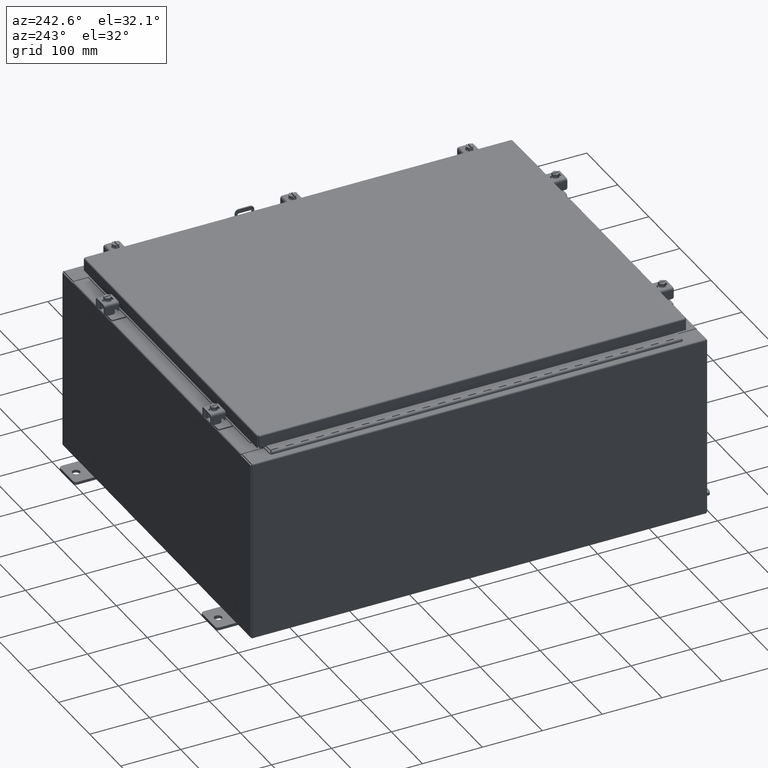
[diagram: clean part render]
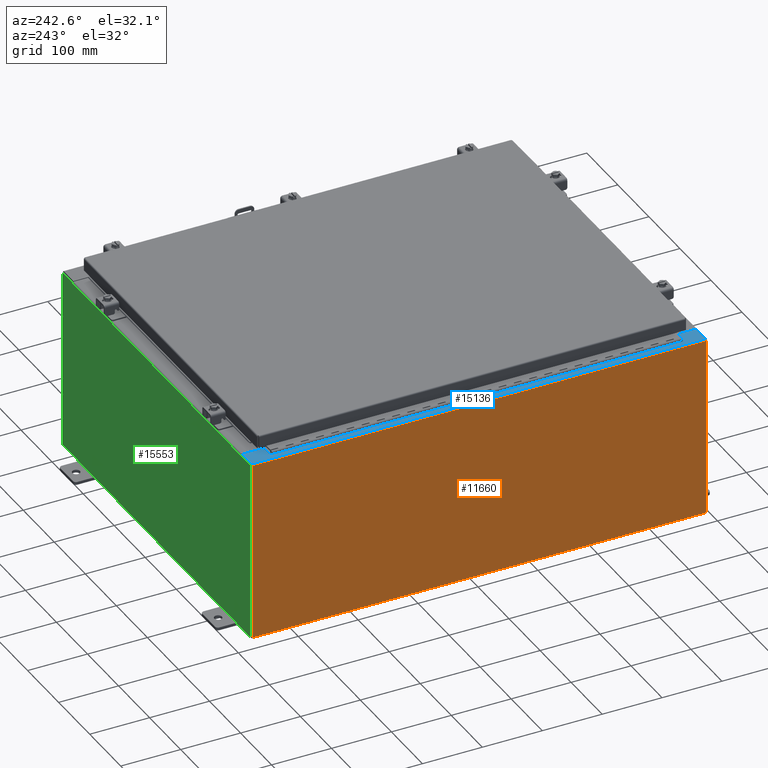
[diagram: same view with three faces highlighted in distinct colors, each labeled with its STEP entity id]
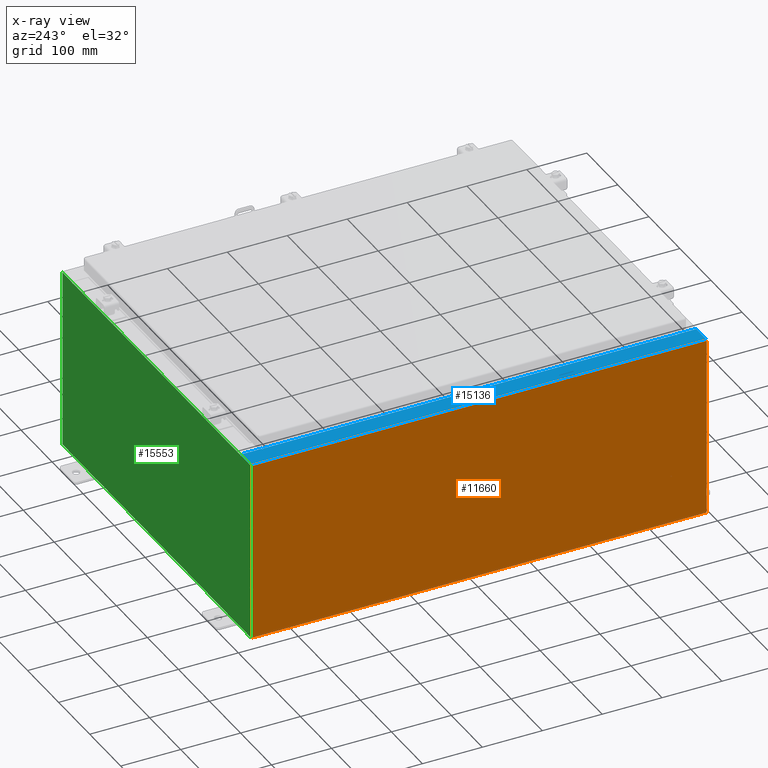
[diagram: x-ray of the same camera — body ghosted, the three highlighted faces saturated]
A machine part, auxiliary view with three faces highlighted in distinct colors.
The next image is the same camera in x-ray (body ghosted, the three faces saturated) — at least one of them is partly hidden behind the body in this view.
Their STEP definitions:

[orange] entity #11660 — the highlighted planar face has unit normal (1, 0, 0).
#926 = VERTEX_POINT ( 'NONE', #29428 ) ;
#4837 = ORIENTED_EDGE ( 'NONE', *, *, #23913, .T. ) ;
#5640 = VECTOR ( 'NONE', #7843, 39.37007874015748100 ) ;
#6124 = EDGE_CURVE ( 'NONE', #7526, #8006, #24874, .T. ) ;
#7376 = VECTOR ( 'NONE', #17183, 39.37007874015748100 ) ;
#7526 = VERTEX_POINT ( 'NONE', #22644 ) ;
#7843 = DIRECTION ( 'NONE',  ( 0.0000000000000000000, 1.000000000000000000, 0.0000000000000000000 ) ) ;
#8006 = VERTEX_POINT ( 'NONE', #34443 ) ;
#8051 = EDGE_CURVE ( 'NONE', #28421, #926, #8302, .T. ) ;
#8302 = LINE ( 'NONE', #22894, #7376 ) ;
#8857 = AXIS2_PLACEMENT_3D ( 'NONE', #14796, #14915, #35388 ) ;
#9064 = EDGE_LOOP ( 'NONE', ( #4837, #10479, #36752, #9737 ) ) ;
#9737 = ORIENTED_EDGE ( 'NONE', *, *, #8051, .T. ) ;
#9794 = VECTOR ( 'NONE', #35792, 39.37007874015748100 ) ;
#10479 = ORIENTED_EDGE ( 'NONE', *, *, #6124, .T. ) ;
#11660 = ADVANCED_FACE ( 'NONE', ( #28235 ), #26511, .F. ) ;
#14796 = CARTESIAN_POINT ( 'NONE',  ( -12.00000000000000500, 0.0000000000000000000, -4.205338505246925100E-014 ) ) ;
#14915 = DIRECTION ( 'NONE',  ( 1.000000000000000000, 0.0000000000000000000, 3.482016343714355100E-015 ) ) ;
#15142 = DIRECTION ( 'NONE',  ( 3.482016343714355500E-015, 0.0000000000000000000, -1.000000000000000000 ) ) ;
#17146 = VECTOR ( 'NONE', #15142, 39.37007874015748100 ) ;
#17183 = DIRECTION ( 'NONE',  ( -3.482016343714355500E-015, 0.0000000000000000000, 1.000000000000000000 ) ) ;
#18451 = LINE ( 'NONE', #21181, #9794 ) ;
#21181 = CARTESIAN_POINT ( 'NONE',  ( -12.00000000000000500, 14.92530000000000000, 0.01299999999999985200 ) ) ;
#22644 = CARTESIAN_POINT ( 'NONE',  ( -12.00000000000004600, 14.92530000000000000, 11.83760000000000000 ) ) ;
#22894 = CARTESIAN_POINT ( 'NONE',  ( -12.00000000000000500, -14.92530000000000000, -4.205338505246925100E-014 ) ) ;
#23913 = EDGE_CURVE ( 'NONE', #926, #7526, #28007, .T. ) ;
#24874 = LINE ( 'NONE', #32669, #17146 ) ;
#26511 = PLANE ( 'NONE',  #8857 ) ;
#28007 = LINE ( 'NONE', #37112, #5640 ) ;
#28235 = FACE_OUTER_BOUND ( 'NONE', #9064, .T. ) ;
#28421 = VERTEX_POINT ( 'NONE', #30241 ) ;
#29428 = CARTESIAN_POINT ( 'NONE',  ( -12.00000000000004600, -14.92530000000000000, 11.83760000000000000 ) ) ;
#30241 = CARTESIAN_POINT ( 'NONE',  ( -12.00000000000000500, -14.92530000000000000, 0.01299999999999985200 ) ) ;
#31495 = EDGE_CURVE ( 'NONE', #28421, #8006, #18451, .T. ) ;
#32669 = CARTESIAN_POINT ( 'NONE',  ( -12.00000000000000500, 14.92530000000000000, -4.205338505246925100E-014 ) ) ;
#34443 = CARTESIAN_POINT ( 'NONE',  ( -12.00000000000000500, 14.92530000000000000, 0.01299999999999985200 ) ) ;
#35388 = DIRECTION ( 'NONE',  ( 3.482016343714355100E-015, 0.0000000000000000000, -1.000000000000000000 ) ) ;
#35792 = DIRECTION ( 'NONE',  ( -0.0000000000000000000, 1.000000000000000000, -0.0000000000000000000 ) ) ;
#36752 = ORIENTED_EDGE ( 'NONE', *, *, #31495, .F. ) ;
#37112 = CARTESIAN_POINT ( 'NONE',  ( -12.00000000000004600, -14.92530000000000000, 11.83760000000000000 ) ) ;

[blue] entity #15136 — the highlighted planar face has unit normal (0, 0, -1).
#312 = VECTOR ( 'NONE', #35569, 39.37007874015748100 ) ;
#434 = EDGE_CURVE ( 'NONE', #12167, #7465, #24797, .T. ) ;
#855 = CARTESIAN_POINT ( 'NONE',  ( -10.75005000000005000, -13.61242500000000000, 11.92530000000000900 ) ) ;
#941 = EDGE_CURVE ( 'NONE', #12470, #20681, #24761, .T. ) ;
#983 = CIRCLE ( 'NONE', #29721, 0.01867499999999949400 ) ;
#1065 = DIRECTION ( 'NONE',  ( -7.132762385546384700E-015, -0.0000000000000000000, 1.000000000000000000 ) ) ;
#1448 = CARTESIAN_POINT ( 'NONE',  ( -10.75005000000005000, -13.63109999999999800, 11.92530000000000900 ) ) ;
#1579 = DIRECTION ( 'NONE',  ( 0.0000000000000000000, 1.000000000000000000, 0.0000000000000000000 ) ) ;
#1714 = ORIENTED_EDGE ( 'NONE', *, *, #4654, .F. ) ;
#2175 = EDGE_CURVE ( 'NONE', #12470, #25241, #33559, .T. ) ;
#2401 = CARTESIAN_POINT ( 'NONE',  ( -10.69970000000004800, -13.63110000000000200, 11.92530000000000900 ) ) ;
#2455 = FACE_OUTER_BOUND ( 'NONE', #11373, .T. ) ;
#2560 = EDGE_CURVE ( 'NONE', #26573, #23428, #983, .T. ) ;
#3809 = DIRECTION ( 'NONE',  ( 1.000000000000000000, 0.0000000000000000000, 0.0000000000000000000 ) ) ;
#4182 = AXIS2_PLACEMENT_3D ( 'NONE', #24514, #27578, #10117 ) ;
#4654 = EDGE_CURVE ( 'NONE', #19203, #26573, #4987, .T. ) ;
#4987 = LINE ( 'NONE', #33914, #10988 ) ;
#5245 = VECTOR ( 'NONE', #27798, 39.37007874015748100 ) ;
#5347 = ORIENTED_EDGE ( 'NONE', *, *, #2175, .F. ) ;
#5784 = DIRECTION ( 'NONE',  ( 0.0000000000000000000, 1.000000000000000000, 0.0000000000000000000 ) ) ;
#6763 = ORIENTED_EDGE ( 'NONE', *, *, #941, .T. ) ;
#7154 = PLANE ( 'NONE',  #4182 ) ;
#7270 = CARTESIAN_POINT ( 'NONE',  ( -10.75005000000005000, -13.63109999999999800, 11.92530000000000900 ) ) ;
#7465 = VERTEX_POINT ( 'NONE', #19610 ) ;
#7641 = DIRECTION ( 'NONE',  ( -1.000000000000000000, 0.0000000000000000000, -7.132762385546384700E-015 ) ) ;
#7823 = CIRCLE ( 'NONE', #16342, 0.01867499999999949400 ) ;
#7995 = EDGE_CURVE ( 'NONE', #23428, #10548, #25650, .T. ) ;
#8347 = EDGE_CURVE ( 'NONE', #7465, #31675, #7823, .T. ) ;
#8691 = ORIENTED_EDGE ( 'NONE', *, *, #2560, .F. ) ;
#9306 = VECTOR ( 'NONE', #32753, 39.37007874015748100 ) ;
#10117 = DIRECTION ( 'NONE',  ( -1.000000000000000000, 0.0000000000000000000, -7.132762385546384700E-015 ) ) ;
#10179 = VECTOR ( 'NONE', #12100, 39.37007874015748100 ) ;
#10548 = VERTEX_POINT ( 'NONE', #20836 ) ;
#10988 = VECTOR ( 'NONE', #19195, 39.37007874015748100 ) ;
#11139 = VERTEX_POINT ( 'NONE', #11909 ) ;
#11373 = EDGE_LOOP ( 'NONE', ( #1714, #24672, #32856, #5347, #6763, #28799, #24395, #19421, #34630, #30504, #30838, #8691 ) ) ;
#11514 = CARTESIAN_POINT ( 'NONE',  ( -10.75005000000005000, 13.63109999999999600, 11.92530000000000900 ) ) ;
#11909 = CARTESIAN_POINT ( 'NONE',  ( -10.69970000000004800, 14.92530000000000000, 11.92530000000000900 ) ) ;
#12066 = EDGE_CURVE ( 'NONE', #11139, #25241, #22279, .T. ) ;
#12100 = DIRECTION ( 'NONE',  ( 1.000000000000000000, -0.0000000000000000000, 7.132762385546384700E-015 ) ) ;
#12167 = VERTEX_POINT ( 'NONE', #28422 ) ;
#12470 = VERTEX_POINT ( 'NONE', #35614 ) ;
#12709 = CARTESIAN_POINT ( 'NONE',  ( -10.69970000000004800, 13.63109999999999800, 11.92530000000000900 ) ) ;
#13015 = EDGE_CURVE ( 'NONE', #10548, #12167, #30536, .T. ) ;
#14760 = VERTEX_POINT ( 'NONE', #2401 ) ;
#15109 = CARTESIAN_POINT ( 'NONE',  ( -10.71270000000005000, 13.59375000000000000, 11.92530000000000900 ) ) ;
#15136 = ADVANCED_FACE ( 'NONE', ( #2455 ), #7154, .F. ) ;
#15213 = EDGE_CURVE ( 'NONE', #19203, #11139, #15302, .T. ) ;
#15302 = LINE ( 'NONE', #22082, #28993 ) ;
#16342 = AXIS2_PLACEMENT_3D ( 'NONE', #855, #21339, #3809 ) ;
#16477 = CARTESIAN_POINT ( 'NONE',  ( -11.91230000000004600, 14.92530000000000000, 11.92530000000000000 ) ) ;
#16910 = CARTESIAN_POINT ( 'NONE',  ( -10.75005000000005000, 13.59374999999999800, 11.92530000000000900 ) ) ;
#18616 = CARTESIAN_POINT ( 'NONE',  ( -10.75005000000005000, 13.61242499999999600, 11.92530000000000900 ) ) ;
#18808 = VECTOR ( 'NONE', #37372, 39.37007874015748100 ) ;
#19195 = DIRECTION ( 'NONE',  ( -1.000000000000000000, -4.340572780399910900E-014, 0.0000000000000000000 ) ) ;
#19203 = VERTEX_POINT ( 'NONE', #12709 ) ;
#19421 = ORIENTED_EDGE ( 'NONE', *, *, #8347, .F. ) ;
#19610 = CARTESIAN_POINT ( 'NONE',  ( -10.75005000000005000, -13.59375000000000000, 11.92530000000000900 ) ) ;
#20681 = VERTEX_POINT ( 'NONE', #22546 ) ;
#20836 = CARTESIAN_POINT ( 'NONE',  ( -10.71270000000005000, 13.59374999999999800, 11.92530000000000900 ) ) ;
#21339 = DIRECTION ( 'NONE',  ( -7.132762385546384700E-015, -0.0000000000000000000, 1.000000000000000000 ) ) ;
#21550 = DIRECTION ( 'NONE',  ( 1.000000000000000000, 0.0000000000000000000, 0.0000000000000000000 ) ) ;
#22082 = CARTESIAN_POINT ( 'NONE',  ( -10.69970000000004800, 0.0000000000000000000, 11.92530000000000900 ) ) ;
#22279 = LINE ( 'NONE', #28035, #30052 ) ;
#22546 = CARTESIAN_POINT ( 'NONE',  ( -10.69970000000004800, -14.92530000000000000, 11.92530000000000900 ) ) ;
#22806 = CARTESIAN_POINT ( 'NONE',  ( -10.75005000000005000, 13.59374999999999800, 11.92530000000000900 ) ) ;
#23428 = VERTEX_POINT ( 'NONE', #22806 ) ;
#24395 = ORIENTED_EDGE ( 'NONE', *, *, #37740, .F. ) ;
#24514 = CARTESIAN_POINT ( 'NONE',  ( -8.532114493224043100E-014, 0.0000000000000000000, 11.92530000000008500 ) ) ;
#24672 = ORIENTED_EDGE ( 'NONE', *, *, #15213, .T. ) ;
#24761 = LINE ( 'NONE', #26594, #10179 ) ;
#24797 = LINE ( 'NONE', #32620, #9306 ) ;
#25241 = VERTEX_POINT ( 'NONE', #34454 ) ;
#25650 = LINE ( 'NONE', #16910, #18808 ) ;
#26573 = VERTEX_POINT ( 'NONE', #11514 ) ;
#26594 = CARTESIAN_POINT ( 'NONE',  ( -8.532114493224043100E-014, -14.92530000000000000, 11.92530000000008500 ) ) ;
#27573 = VECTOR ( 'NONE', #36944, 39.37007874015748100 ) ;
#27578 = DIRECTION ( 'NONE',  ( 7.132762385546384700E-015, 0.0000000000000000000, -1.000000000000000000 ) ) ;
#27798 = DIRECTION ( 'NONE',  ( 1.000000000000000000, 0.0000000000000000000, 0.0000000000000000000 ) ) ;
#28035 = CARTESIAN_POINT ( 'NONE',  ( -8.532114493224043100E-014, 14.92530000000000000, 11.92530000000008500 ) ) ;
#28422 = CARTESIAN_POINT ( 'NONE',  ( -10.71270000000005000, -13.59375000000000000, 11.92530000000000900 ) ) ;
#28574 = LINE ( 'NONE', #1448, #5245 ) ;
#28799 = ORIENTED_EDGE ( 'NONE', *, *, #31119, .T. ) ;
#28993 = VECTOR ( 'NONE', #1579, 39.37007874015748100 ) ;
#29453 = VECTOR ( 'NONE', #5784, 39.37007874015748100 ) ;
#29721 = AXIS2_PLACEMENT_3D ( 'NONE', #18616, #1065, #21550 ) ;
#30052 = VECTOR ( 'NONE', #7641, 39.37007874015748100 ) ;
#30370 = LINE ( 'NONE', #37883, #29453 ) ;
#30504 = ORIENTED_EDGE ( 'NONE', *, *, #13015, .F. ) ;
#30536 = LINE ( 'NONE', #15109, #312 ) ;
#30838 = ORIENTED_EDGE ( 'NONE', *, *, #7995, .F. ) ;
#31119 = EDGE_CURVE ( 'NONE', #20681, #14760, #30370, .T. ) ;
#31675 = VERTEX_POINT ( 'NONE', #7270 ) ;
#32620 = CARTESIAN_POINT ( 'NONE',  ( -10.71270000000005000, -13.59375000000000000, 11.92530000000000900 ) ) ;
#32753 = DIRECTION ( 'NONE',  ( -1.000000000000000000, 0.0000000000000000000, 0.0000000000000000000 ) ) ;
#32856 = ORIENTED_EDGE ( 'NONE', *, *, #12066, .T. ) ;
#33559 = LINE ( 'NONE', #16477, #27573 ) ;
#33914 = CARTESIAN_POINT ( 'NONE',  ( -10.69970000000004800, 13.63109999999999800, 11.92530000000000900 ) ) ;
#34454 = CARTESIAN_POINT ( 'NONE',  ( -11.91230000000004600, 14.92530000000000000, 11.92530000000000000 ) ) ;
#34630 = ORIENTED_EDGE ( 'NONE', *, *, #434, .F. ) ;
#35569 = DIRECTION ( 'NONE',  ( -0.0000000000000000000, -1.000000000000000000, -0.0000000000000000000 ) ) ;
#35614 = CARTESIAN_POINT ( 'NONE',  ( -11.91230000000004600, -14.92530000000000000, 11.92530000000000000 ) ) ;
#36944 = DIRECTION ( 'NONE',  ( -0.0000000000000000000, 1.000000000000000000, -0.0000000000000000000 ) ) ;
#37372 = DIRECTION ( 'NONE',  ( 1.000000000000000000, 0.0000000000000000000, 0.0000000000000000000 ) ) ;
#37740 = EDGE_CURVE ( 'NONE', #31675, #14760, #28574, .T. ) ;
#37883 = CARTESIAN_POINT ( 'NONE',  ( -10.69970000000004800, 0.0000000000000000000, 11.92530000000000900 ) ) ;

[green] entity #15553 — the highlighted planar face has unit normal (0, -1, 0).
#166 = LINE ( 'NONE', #14418, #30385 ) ;
#513 = DIRECTION ( 'NONE',  ( 1.000000000000000000, 0.0000000000000000000, 4.581600452255731000E-017 ) ) ;
#644 = ORIENTED_EDGE ( 'NONE', *, *, #32861, .T. ) ;
#665 = ORIENTED_EDGE ( 'NONE', *, *, #14226, .T. ) ;
#1322 = ORIENTED_EDGE ( 'NONE', *, *, #5954, .F. ) ;
#1840 = LINE ( 'NONE', #11788, #31184 ) ;
#2138 = EDGE_CURVE ( 'NONE', #22735, #20703, #35403, .T. ) ;
#2265 = ORIENTED_EDGE ( 'NONE', *, *, #2138, .F. ) ;
#2316 = EDGE_CURVE ( 'NONE', #17011, #4866, #14349, .T. ) ;
#3161 = VERTEX_POINT ( 'NONE', #33046 ) ;
#3698 = ORIENTED_EDGE ( 'NONE', *, *, #14281, .F. ) ;
#4220 = VECTOR ( 'NONE', #20402, 39.37007874015748100 ) ;
#4462 = VECTOR ( 'NONE', #7374, 39.37007874015748100 ) ;
#4866 = VERTEX_POINT ( 'NONE', #26949 ) ;
#5329 = DIRECTION ( 'NONE',  ( -1.000000000000000000, -0.0000000000000000000, -0.0000000000000000000 ) ) ;
#5754 = VECTOR ( 'NONE', #26304, 39.37007874015748100 ) ;
#5954 = EDGE_CURVE ( 'NONE', #3161, #22735, #166, .T. ) ;
#6957 = AXIS2_PLACEMENT_3D ( 'NONE', #16235, #36691, #19161 ) ;
#7032 = EDGE_CURVE ( 'NONE', #25680, #27352, #12065, .T. ) ;
#7374 = DIRECTION ( 'NONE',  ( 0.0000000000000000000, 0.0000000000000000000, 1.000000000000000000 ) ) ;
#7611 = CARTESIAN_POINT ( 'NONE',  ( -10.67455000000000200, 0.0000000000000000000, 5.925299999999999100 ) ) ;
#8165 = VECTOR ( 'NONE', #16370, 39.37007874015748100 ) ;
#8263 = CARTESIAN_POINT ( 'NONE',  ( 10.63720000000000400, 0.0000000000000000000, 5.874950000000001900 ) ) ;
#8297 = ORIENTED_EDGE ( 'NONE', *, *, #20504, .F. ) ;
#9100 = DIRECTION ( 'NONE',  ( 0.0000000000000000000, 0.0000000000000000000, -1.000000000000000000 ) ) ;
#9199 = PLANE ( 'NONE',  #30919 ) ;
#9207 = DIRECTION ( 'NONE',  ( -0.0000000000000000000, 1.000000000000000000, -0.0000000000000000000 ) ) ;
#9788 = EDGE_CURVE ( 'NONE', #14646, #25680, #26946, .T. ) ;
#10700 = CARTESIAN_POINT ( 'NONE',  ( 11.92530000000000000, 0.0000000000000000000, 5.925300000000001800 ) ) ;
#10970 = VECTOR ( 'NONE', #513, 39.37007874015748100 ) ;
#11406 = LINE ( 'NONE', #24847, #4462 ) ;
#11628 = CARTESIAN_POINT ( 'NONE',  ( -10.67455000000000200, 0.0000000000000000000, 0.0000000000000000000 ) ) ;
#11788 = CARTESIAN_POINT ( 'NONE',  ( -10.63720000000000400, 0.0000000000000000000, 5.912300000000001000 ) ) ;
#12065 = LINE ( 'NONE', #11628, #4220 ) ;
#12143 = DIRECTION ( 'NONE',  ( 0.0000000000000000000, -0.0000000000000000000, -1.000000000000000000 ) ) ;
#12224 = FACE_OUTER_BOUND ( 'NONE', #35097, .T. ) ;
#13455 = CARTESIAN_POINT ( 'NONE',  ( -11.92530000000000000, 0.0000000000000000000, 5.925299999999999100 ) ) ;
#13564 = LINE ( 'NONE', #35068, #5754 ) ;
#13843 = ORIENTED_EDGE ( 'NONE', *, *, #2316, .T. ) ;
#14226 = EDGE_CURVE ( 'NONE', #4866, #27837, #13564, .T. ) ;
#14281 = EDGE_CURVE ( 'NONE', #31316, #14646, #35075, .T. ) ;
#14349 = LINE ( 'NONE', #22834, #15231 ) ;
#14418 = CARTESIAN_POINT ( 'NONE',  ( 10.67455000000000200, 0.0000000000000000000, 0.0000000000000000000 ) ) ;
#14646 = VERTEX_POINT ( 'NONE', #31030 ) ;
#14851 = ORIENTED_EDGE ( 'NONE', *, *, #7032, .F. ) ;
#15231 = VECTOR ( 'NONE', #5329, 39.37007874015748100 ) ;
#15553 = ADVANCED_FACE ( 'NONE', ( #12224 ), #9199, .F. ) ;
#16045 = VERTEX_POINT ( 'NONE', #22942 ) ;
#16133 = VECTOR ( 'NONE', #19497, 39.37007874015748100 ) ;
#16235 = CARTESIAN_POINT ( 'NONE',  ( 10.65587500000000200, 0.0000000000000000000, 5.874950000000001900 ) ) ;
#16284 = ORIENTED_EDGE ( 'NONE', *, *, #9788, .F. ) ;
#16370 = DIRECTION ( 'NONE',  ( 1.000000000000000000, 0.0000000000000000000, 4.581600452255731000E-017 ) ) ;
#17011 = VERTEX_POINT ( 'NONE', #27460 ) ;
#17404 = CARTESIAN_POINT ( 'NONE',  ( -10.63720000000000400, 0.0000000000000000000, 5.912300000000001000 ) ) ;
#18069 = CARTESIAN_POINT ( 'NONE',  ( -11.92530000000000000, 0.0000000000000000000, 5.925299999999999100 ) ) ;
#18717 = EDGE_CURVE ( 'NONE', #16045, #17011, #23872, .T. ) ;
#18803 = CARTESIAN_POINT ( 'NONE',  ( -10.67455000000000200, 0.0000000000000000000, 5.874950000000001900 ) ) ;
#19161 = DIRECTION ( 'NONE',  ( 0.0000000000000000000, 0.0000000000000000000, -1.000000000000000000 ) ) ;
#19497 = DIRECTION ( 'NONE',  ( 0.0000000000000000000, 0.0000000000000000000, -1.000000000000000000 ) ) ;
#20402 = DIRECTION ( 'NONE',  ( 0.0000000000000000000, 0.0000000000000000000, 1.000000000000000000 ) ) ;
#20504 = EDGE_CURVE ( 'NONE', #20703, #21740, #11406, .T. ) ;
#20694 = CARTESIAN_POINT ( 'NONE',  ( -10.63720000000000400, 0.0000000000000000000, 0.0000000000000000000 ) ) ;
#20703 = VERTEX_POINT ( 'NONE', #8263 ) ;
#21740 = VERTEX_POINT ( 'NONE', #34573 ) ;
#22735 = VERTEX_POINT ( 'NONE', #30886 ) ;
#22834 = CARTESIAN_POINT ( 'NONE',  ( -11.92530000000000000, 0.0000000000000000000, -5.925299999999999100 ) ) ;
#22942 = CARTESIAN_POINT ( 'NONE',  ( 11.92530000000000000, 0.0000000000000000000, 5.925300000000001800 ) ) ;
#23872 = LINE ( 'NONE', #10700, #16133 ) ;
#24847 = CARTESIAN_POINT ( 'NONE',  ( 10.63720000000000400, 0.0000000000000000000, 0.0000000000000000000 ) ) ;
#25680 = VERTEX_POINT ( 'NONE', #18803 ) ;
#26304 = DIRECTION ( 'NONE',  ( -0.0000000000000000000, -0.0000000000000000000, 1.000000000000000000 ) ) ;
#26386 = AXIS2_PLACEMENT_3D ( 'NONE', #26652, #9207, #29602 ) ;
#26652 = CARTESIAN_POINT ( 'NONE',  ( -10.65587500000000200, 0.0000000000000000000, 5.874950000000001900 ) ) ;
#26725 = EDGE_CURVE ( 'NONE', #27837, #27352, #33358, .T. ) ;
#26946 = CIRCLE ( 'NONE', #26386, 0.01867499999999949400 ) ;
#26949 = CARTESIAN_POINT ( 'NONE',  ( -11.92530000000000000, 0.0000000000000000000, -5.925299999999999100 ) ) ;
#27215 = VECTOR ( 'NONE', #9100, 39.37007874015748100 ) ;
#27352 = VERTEX_POINT ( 'NONE', #7611 ) ;
#27460 = CARTESIAN_POINT ( 'NONE',  ( 11.92530000000000000, 0.0000000000000000000, -5.925299999999999100 ) ) ;
#27837 = VERTEX_POINT ( 'NONE', #30424 ) ;
#27926 = EDGE_CURVE ( 'NONE', #3161, #16045, #31470, .T. ) ;
#29592 = DIRECTION ( 'NONE',  ( 0.0000000000000000000, -1.000000000000000000, 0.0000000000000000000 ) ) ;
#29602 = DIRECTION ( 'NONE',  ( 0.0000000000000000000, 0.0000000000000000000, -1.000000000000000000 ) ) ;
#30385 = VECTOR ( 'NONE', #34869, 39.37007874015748100 ) ;
#30424 = CARTESIAN_POINT ( 'NONE',  ( -11.92530000000000000, 0.0000000000000000000, 5.925299999999999100 ) ) ;
#30886 = CARTESIAN_POINT ( 'NONE',  ( 10.67455000000000200, 0.0000000000000000000, 5.874950000000001900 ) ) ;
#30919 = AXIS2_PLACEMENT_3D ( 'NONE', #32322, #29592, #12143 ) ;
#31030 = CARTESIAN_POINT ( 'NONE',  ( -10.63720000000000400, 0.0000000000000000000, 5.874950000000001900 ) ) ;
#31184 = VECTOR ( 'NONE', #35300, 39.37007874015748100 ) ;
#31316 = VERTEX_POINT ( 'NONE', #17404 ) ;
#31470 = LINE ( 'NONE', #13455, #8165 ) ;
#32322 = CARTESIAN_POINT ( 'NONE',  ( 0.0000000000000000000, 0.0000000000000000000, 0.0000000000000000000 ) ) ;
#32861 = EDGE_CURVE ( 'NONE', #31316, #21740, #1840, .T. ) ;
#33046 = CARTESIAN_POINT ( 'NONE',  ( 10.67455000000000200, 0.0000000000000000000, 5.925300000000001800 ) ) ;
#33358 = LINE ( 'NONE', #18069, #10970 ) ;
#34573 = CARTESIAN_POINT ( 'NONE',  ( 10.63720000000000400, 0.0000000000000000000, 5.912300000000001000 ) ) ;
#34694 = ORIENTED_EDGE ( 'NONE', *, *, #27926, .T. ) ;
#34869 = DIRECTION ( 'NONE',  ( 0.0000000000000000000, 0.0000000000000000000, -1.000000000000000000 ) ) ;
#35068 = CARTESIAN_POINT ( 'NONE',  ( -11.92530000000000000, 0.0000000000000000000, 5.925299999999999100 ) ) ;
#35075 = LINE ( 'NONE', #20694, #27215 ) ;
#35097 = EDGE_LOOP ( 'NONE', ( #14851, #16284, #3698, #644, #8297, #2265, #1322, #34694, #37519, #13843, #665, #37974 ) ) ;
#35300 = DIRECTION ( 'NONE',  ( 1.000000000000000000, 0.0000000000000000000, 0.0000000000000000000 ) ) ;
#35403 = CIRCLE ( 'NONE', #6957, 0.01867499999999949400 ) ;
#36691 = DIRECTION ( 'NONE',  ( -0.0000000000000000000, 1.000000000000000000, -0.0000000000000000000 ) ) ;
#37519 = ORIENTED_EDGE ( 'NONE', *, *, #18717, .T. ) ;
#37974 = ORIENTED_EDGE ( 'NONE', *, *, #26725, .T. ) ;